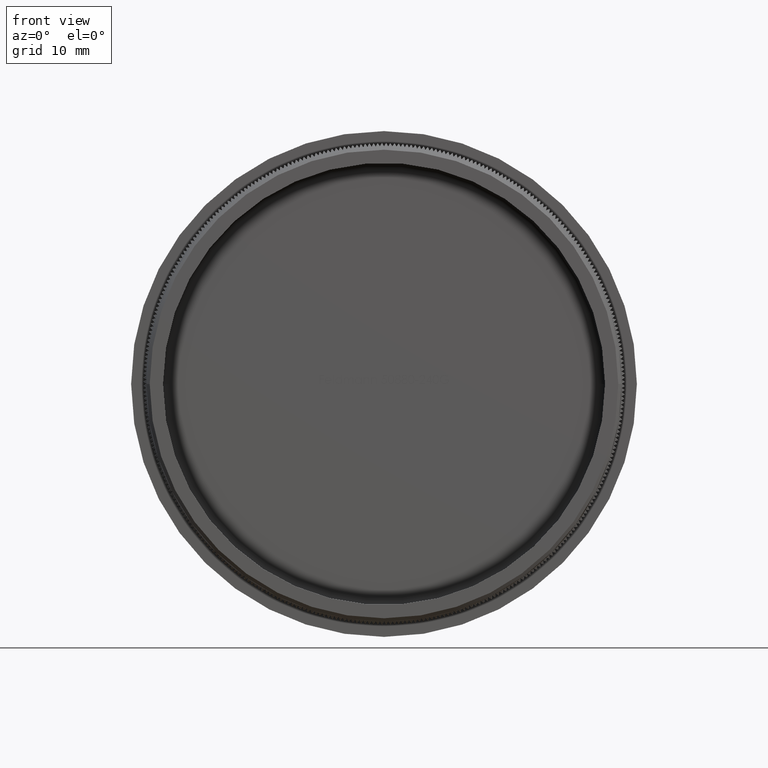
[diagram: clean part render]
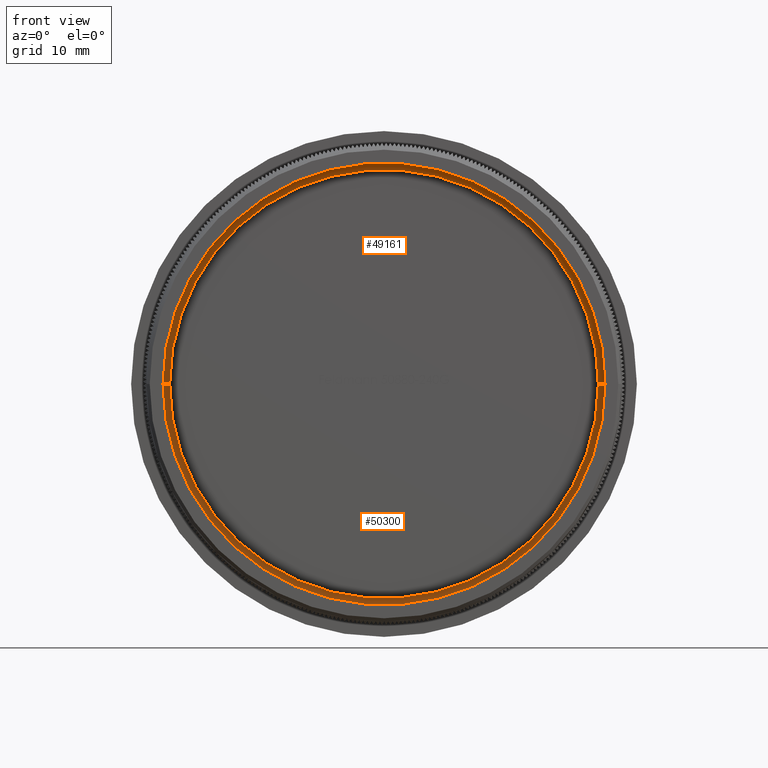
[diagram: same view with one multi-face feature highlighted, each face labeled with its STEP entity id]
A machine part, front view. The highlighted faces form ONE feature: a constant-radius fillet chain: 2 tangent blend faces with common blend radius 1 mm. The faces share edges in the B-rep.
Their STEP definitions:
[1] entity #49161 (Torus):
#1255 = CIRCLE ( 'NONE', #28558, 32.25000000000002800 ) ;
#2206 = ORIENTED_EDGE ( 'NONE', *, *, #26795, .F. ) ;
#2613 = ORIENTED_EDGE ( 'NONE', *, *, #38397, .F. ) ;
#4885 = CARTESIAN_POINT ( 'NONE',  ( -3.245114972974411400E-015, 15.00000000000004800, 0.0000000000000000000 ) ) ;
#5412 = CARTESIAN_POINT ( 'NONE',  ( 32.25000000000002800, 15.99999999999994500, 0.0000000000000000000 ) ) ;
#5438 = ORIENTED_EDGE ( 'NONE', *, *, #62721, .T. ) ;
#5732 = AXIS2_PLACEMENT_3D ( 'NONE', #36489, #51227, #31215 ) ;
#6287 = AXIS2_PLACEMENT_3D ( 'NONE', #4885, #49705, #54733 ) ;
#6378 = DIRECTION ( 'NONE',  ( 1.000000000000000000, -3.245114972974590400E-015, 0.0000000000000000000 ) ) ;
#9533 = FACE_OUTER_BOUND ( 'NONE', #27385, .T. ) ;
#11198 = CARTESIAN_POINT ( 'NONE',  ( -3.245114972974411400E-015, 15.00000000000004800, 0.0000000000000000000 ) ) ;
#11875 = AXIS2_PLACEMENT_3D ( 'NONE', #63027, #53392, #28348 ) ;
#13332 = CARTESIAN_POINT ( 'NONE',  ( 33.25000000000002800, 14.99999999999994000, 0.0000000000000000000 ) ) ;
#13896 = VERTEX_POINT ( 'NONE', #5412 ) ;
#16312 = DIRECTION ( 'NONE',  ( -3.245114972974590400E-015, -1.000000000000000000, -0.0000000000000000000 ) ) ;
#16804 = CIRCLE ( 'NONE', #6287, 33.25000000000002800 ) ;
#20034 = CARTESIAN_POINT ( 'NONE',  ( -32.25000000000002800, 16.00000000000015300, 4.010718267207585600E-015 ) ) ;
#21501 = DIRECTION ( 'NONE',  ( -3.245114972974590400E-015, -1.000000000000000000, -0.0000000000000000000 ) ) ;
#24757 = CIRCLE ( 'NONE', #11875, 1.000000000000000900 ) ;
#26795 = EDGE_CURVE ( 'NONE', #28975, #62538, #24757, .T. ) ;
#27385 = EDGE_LOOP ( 'NONE', ( #2206, #2613, #5438, #30431 ) ) ;
#28348 = DIRECTION ( 'NONE',  ( 1.000000000000000000, 0.0000000000000000000, -1.224646799147349500E-016 ) ) ;
#28558 = AXIS2_PLACEMENT_3D ( 'NONE', #46370, #16312, #51413 ) ;
#28975 = VERTEX_POINT ( 'NONE', #20034 ) ;
#30431 = ORIENTED_EDGE ( 'NONE', *, *, #47664, .F. ) ;
#31215 = DIRECTION ( 'NONE',  ( -1.000000000000000000, 0.0000000000000000000, 0.0000000000000000000 ) ) ;
#36489 = CARTESIAN_POINT ( 'NONE',  ( 32.25000000000002800, 14.99999999999994300, 0.0000000000000000000 ) ) ;
#38397 = EDGE_CURVE ( 'NONE', #13896, #28975, #1255, .T. ) ;
#39045 = VERTEX_POINT ( 'NONE', #13332 ) ;
#43578 = CARTESIAN_POINT ( 'NONE',  ( -33.25000000000002800, 15.00000000000015600, 4.071950607164952400E-015 ) ) ;
#46370 = CARTESIAN_POINT ( 'NONE',  ( 1.833485307056648500E-028, 16.00000000000005000, 0.0000000000000000000 ) ) ;
#47664 = EDGE_CURVE ( 'NONE', #62538, #39045, #16804, .T. ) ;
#49161 = ADVANCED_FACE ( 'NONE', ( #9533 ), #62185, .F. ) ;
#49705 = DIRECTION ( 'NONE',  ( 3.245114972974590400E-015, 1.000000000000000000, 0.0000000000000000000 ) ) ;
#51227 = DIRECTION ( 'NONE',  ( 0.0000000000000000000, 0.0000000000000000000, -1.000000000000000000 ) ) ;
#51413 = DIRECTION ( 'NONE',  ( 1.000000000000000000, -3.227392513445219600E-015, 0.0000000000000000000 ) ) ;
#53392 = DIRECTION ( 'NONE',  ( 1.224646799147353200E-016, -3.974119664518481600E-031, 1.000000000000000000 ) ) ;
#54733 = DIRECTION ( 'NONE',  ( 1.000000000000000000, -3.234672346182314100E-015, 0.0000000000000000000 ) ) ;
#55515 = CIRCLE ( 'NONE', #5732, 1.000000000000000900 ) ;
#60905 = AXIS2_PLACEMENT_3D ( 'NONE', #11198, #21501, #6378 ) ;
#62185 = TOROIDAL_SURFACE ( 'NONE', #60905, 32.25000000000002800, 1.000000000000000000 ) ;
#62538 = VERTEX_POINT ( 'NONE', #43578 ) ;
#62721 = EDGE_CURVE ( 'NONE', #13896, #39045, #55515, .T. ) ;
#63027 = CARTESIAN_POINT ( 'NONE',  ( -32.25000000000002800, 15.00000000000015300, 3.949485927250218000E-015 ) ) ;
[2] entity #50300 (Torus):
#4759 = EDGE_CURVE ( 'NONE', #28975, #13896, #62152, .T. ) ;
#5012 = DIRECTION ( 'NONE',  ( -3.245114972974590400E-015, -1.000000000000000000, -0.0000000000000000000 ) ) ;
#5412 = CARTESIAN_POINT ( 'NONE',  ( 32.25000000000002800, 15.99999999999994500, 0.0000000000000000000 ) ) ;
#5732 = AXIS2_PLACEMENT_3D ( 'NONE', #36489, #51227, #31215 ) ;
#7375 = DIRECTION ( 'NONE',  ( -3.245114972974590400E-015, -1.000000000000000000, -0.0000000000000000000 ) ) ;
#9417 = DIRECTION ( 'NONE',  ( 3.245114972974590400E-015, 1.000000000000000000, 0.0000000000000000000 ) ) ;
#10777 = ORIENTED_EDGE ( 'NONE', *, *, #44537, .F. ) ;
#10790 = CIRCLE ( 'NONE', #65027, 33.25000000000002800 ) ;
#11875 = AXIS2_PLACEMENT_3D ( 'NONE', #63027, #53392, #28348 ) ;
#13332 = CARTESIAN_POINT ( 'NONE',  ( 33.25000000000002800, 14.99999999999994000, 0.0000000000000000000 ) ) ;
#13896 = VERTEX_POINT ( 'NONE', #5412 ) ;
#14058 = DIRECTION ( 'NONE',  ( 1.000000000000000000, -3.234672346182314100E-015, 0.0000000000000000000 ) ) ;
#20034 = CARTESIAN_POINT ( 'NONE',  ( -32.25000000000002800, 16.00000000000015300, 4.010718267207585600E-015 ) ) ;
#20373 = CARTESIAN_POINT ( 'NONE',  ( -3.245114972974411400E-015, 15.00000000000004800, 0.0000000000000000000 ) ) ;
#21434 = CARTESIAN_POINT ( 'NONE',  ( 1.833485307056648500E-028, 16.00000000000005000, 0.0000000000000000000 ) ) ;
#24196 = AXIS2_PLACEMENT_3D ( 'NONE', #21434, #7375, #54969 ) ;
#24757 = CIRCLE ( 'NONE', #11875, 1.000000000000000900 ) ;
#26622 = ORIENTED_EDGE ( 'NONE', *, *, #62721, .F. ) ;
#26795 = EDGE_CURVE ( 'NONE', #28975, #62538, #24757, .T. ) ;
#28348 = DIRECTION ( 'NONE',  ( 1.000000000000000000, 0.0000000000000000000, -1.224646799147349500E-016 ) ) ;
#28975 = VERTEX_POINT ( 'NONE', #20034 ) ;
#31215 = DIRECTION ( 'NONE',  ( -1.000000000000000000, 0.0000000000000000000, 0.0000000000000000000 ) ) ;
#36489 = CARTESIAN_POINT ( 'NONE',  ( 32.25000000000002800, 14.99999999999994300, 0.0000000000000000000 ) ) ;
#37331 = TOROIDAL_SURFACE ( 'NONE', #59267, 32.25000000000002800, 1.000000000000000000 ) ;
#39045 = VERTEX_POINT ( 'NONE', #13332 ) ;
#43578 = CARTESIAN_POINT ( 'NONE',  ( -33.25000000000002800, 15.00000000000015600, 4.071950607164952400E-015 ) ) ;
#44537 = EDGE_CURVE ( 'NONE', #39045, #62538, #10790, .T. ) ;
#47821 = EDGE_LOOP ( 'NONE', ( #50851, #56999, #10777, #26622 ) ) ;
#50012 = CARTESIAN_POINT ( 'NONE',  ( -3.245114972974411400E-015, 15.00000000000004800, 0.0000000000000000000 ) ) ;
#50300 = ADVANCED_FACE ( 'NONE', ( #63283 ), #37331, .F. ) ;
#50851 = ORIENTED_EDGE ( 'NONE', *, *, #4759, .F. ) ;
#50921 = DIRECTION ( 'NONE',  ( 1.000000000000000000, -3.245114972974590400E-015, 0.0000000000000000000 ) ) ;
#51227 = DIRECTION ( 'NONE',  ( 0.0000000000000000000, 0.0000000000000000000, -1.000000000000000000 ) ) ;
#53392 = DIRECTION ( 'NONE',  ( 1.224646799147353200E-016, -3.974119664518481600E-031, 1.000000000000000000 ) ) ;
#54969 = DIRECTION ( 'NONE',  ( 1.000000000000000000, -3.227392513445219600E-015, 0.0000000000000000000 ) ) ;
#55515 = CIRCLE ( 'NONE', #5732, 1.000000000000000900 ) ;
#56999 = ORIENTED_EDGE ( 'NONE', *, *, #26795, .T. ) ;
#59267 = AXIS2_PLACEMENT_3D ( 'NONE', #20373, #5012, #50921 ) ;
#62152 = CIRCLE ( 'NONE', #24196, 32.25000000000002800 ) ;
#62538 = VERTEX_POINT ( 'NONE', #43578 ) ;
#62721 = EDGE_CURVE ( 'NONE', #13896, #39045, #55515, .T. ) ;
#63027 = CARTESIAN_POINT ( 'NONE',  ( -32.25000000000002800, 15.00000000000015300, 3.949485927250218000E-015 ) ) ;
#63283 = FACE_OUTER_BOUND ( 'NONE', #47821, .T. ) ;
#65027 = AXIS2_PLACEMENT_3D ( 'NONE', #50012, #9417, #14058 ) ;